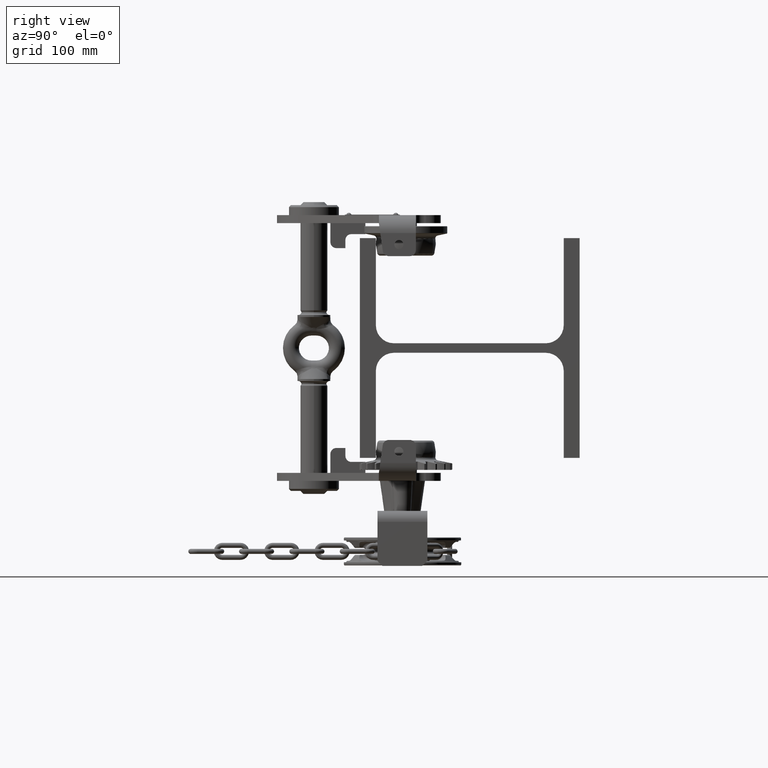
[diagram: clean part render]
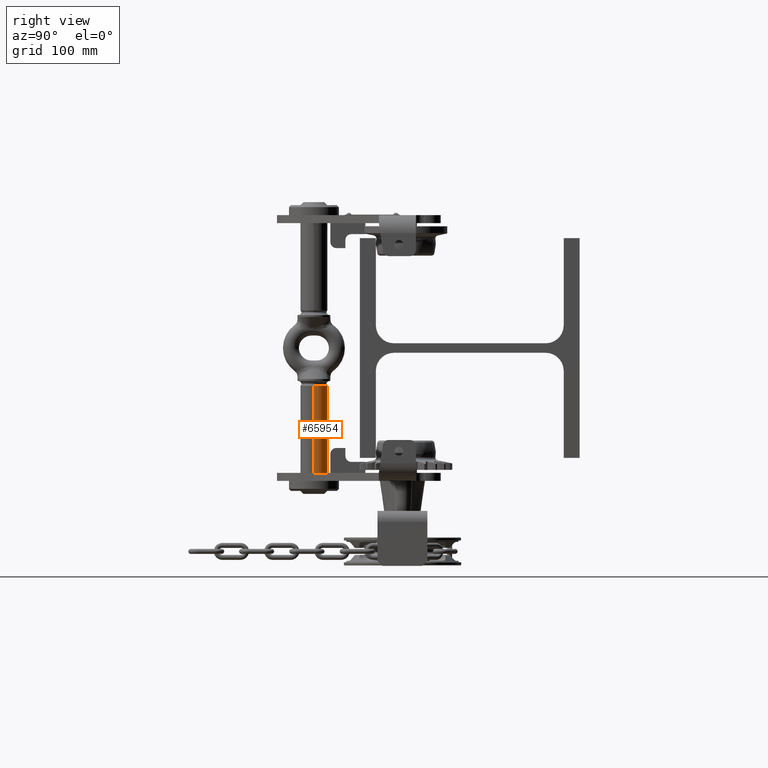
[diagram: same view with one face highlighted and labeled with its STEP entity id]
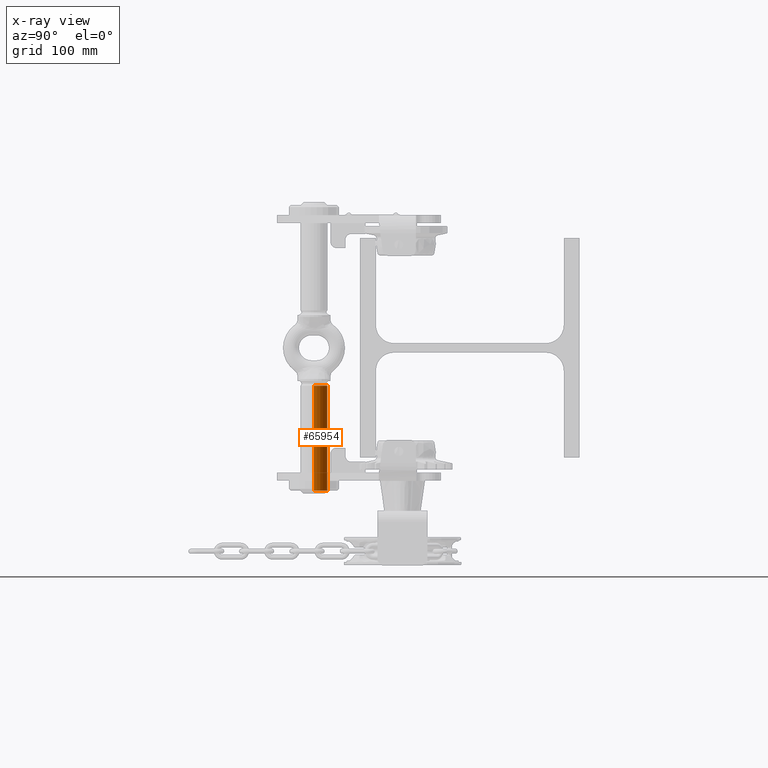
[diagram: x-ray of the same camera — body ghosted, the highlighted face saturated]
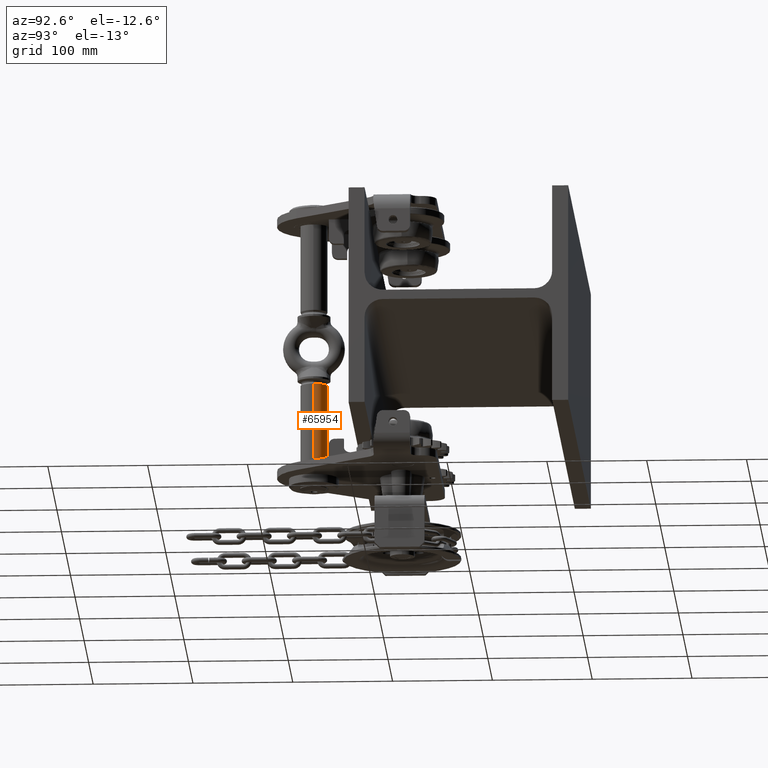
[diagram: same view with one face highlighted and labeled with its STEP entity id]
A machine part, right view. The second image highlights one B-rep face of the part: STEP entity #65954.
The next image is the same camera in x-ray: the body ghosted, the highlighted face saturated — about 0% of this face is hidden behind the body in this view.
A second angle (auxiliary view) of the same face is appended — the face is thin or edge-on in the first view.
In plain terms, the highlighted cylindrical surface (edge-blend (fillet) strip) has radius 13.5 mm, axis along (-0, -0, -1).
Its self-contained STEP definition (entity closure, byte-faithful):
#1625 = FACE_OUTER_BOUND ( 'NONE', #62891, .T. ) ;
#2466 = VERTEX_POINT ( 'NONE', #50190 ) ;
#6380 = AXIS2_PLACEMENT_3D ( 'NONE', #46461, #14658, #69481 ) ;
#7515 = AXIS2_PLACEMENT_3D ( 'NONE', #52473, #91489, #59603 ) ;
#11310 = DIRECTION ( 'NONE',  ( -6.932088575135509200E-017, -5.548357037863925300E-017, -1.000000000000000000 ) ) ;
#14262 = ORIENTED_EDGE ( 'NONE', *, *, #50264, .T. ) ;
#14658 = DIRECTION ( 'NONE',  ( 6.932088575135509200E-017, 5.548357037863925300E-017, 1.000000000000000000 ) ) ;
#17167 = DIRECTION ( 'NONE',  ( -6.932088575135509200E-017, -5.548357037863925300E-017, -1.000000000000000000 ) ) ;
#18652 = VECTOR ( 'NONE', #17167, 1000.000000000000000 ) ;
#19504 = CARTESIAN_POINT ( 'NONE',  ( 13.50000000000061800, -155.9999999999998600, -167.4491825357096100 ) ) ;
#21861 = EDGE_CURVE ( 'NONE', #100092, #30744, #42928, .T. ) ;
#22913 = CARTESIAN_POINT ( 'NONE',  ( -13.49999999999937300, -155.9999999999998600, -37.73205080756886100 ) ) ;
#23247 = CARTESIAN_POINT ( 'NONE',  ( -13.49999999999938200, -155.9999999999998600, -167.4491825357096100 ) ) ;
#30744 = VERTEX_POINT ( 'NONE', #22913 ) ;
#35196 = VERTEX_POINT ( 'NONE', #64530 ) ;
#37124 = DIRECTION ( 'NONE',  ( -1.000000000000000000, 0.0000000000000000000, 0.0000000000000000000 ) ) ;
#39369 = VECTOR ( 'NONE', #11310, 1000.000000000000000 ) ;
#39648 = ORIENTED_EDGE ( 'NONE', *, *, #81798, .F. ) ;
#41473 = CIRCLE ( 'NONE', #6380, 13.50000000000000000 ) ;
#42928 = CIRCLE ( 'NONE', #7515, 13.50000000000000000 ) ;
#46461 = CARTESIAN_POINT ( 'NONE',  ( 6.185692979137188800E-013, -155.9999999999998600, -143.0000000000000300 ) ) ;
#50190 = CARTESIAN_POINT ( 'NONE',  ( -13.49999999999938200, -155.9999999999998600, -143.0000000000000300 ) ) ;
#50264 = EDGE_CURVE ( 'NONE', #100092, #35196, #90379, .T. ) ;
#52473 = CARTESIAN_POINT ( 'NONE',  ( 6.258665653929669300E-013, -155.9999999999998600, -37.73205080756886100 ) ) ;
#59603 = DIRECTION ( 'NONE',  ( -1.000000000000000000, 0.0000000000000000000, 0.0000000000000000000 ) ) ;
#62891 = EDGE_LOOP ( 'NONE', ( #93154, #14262, #76276, #39648 ) ) ;
#64530 = CARTESIAN_POINT ( 'NONE',  ( 13.50000000000061800, -155.9999999999998600, -143.0000000000000300 ) ) ;
#65954 = ADVANCED_FACE ( 'NONE', ( #1625 ), #81593, .T. ) ;
#69481 = DIRECTION ( 'NONE',  ( -1.000000000000000000, 0.0000000000000000000, 0.0000000000000000000 ) ) ;
#74709 = AXIS2_PLACEMENT_3D ( 'NONE', #92438, #91413, #37124 ) ;
#76276 = ORIENTED_EDGE ( 'NONE', *, *, #82305, .T. ) ;
#81593 = CYLINDRICAL_SURFACE ( 'NONE', #74709, 13.50000000000000000 ) ;
#81798 = EDGE_CURVE ( 'NONE', #30744, #2466, #93872, .T. ) ;
#82305 = EDGE_CURVE ( 'NONE', #35196, #2466, #41473, .T. ) ;
#90379 = LINE ( 'NONE', #19504, #39369 ) ;
#91413 = DIRECTION ( 'NONE',  ( -6.932088575135509200E-017, -5.548357037863925300E-017, -1.000000000000000000 ) ) ;
#91489 = DIRECTION ( 'NONE',  ( 6.932088575135509200E-017, 5.548357037863925300E-017, 1.000000000000000000 ) ) ;
#92438 = CARTESIAN_POINT ( 'NONE',  ( 6.168744589244470000E-013, -155.9999999999998600, -167.4491825357096100 ) ) ;
#93154 = ORIENTED_EDGE ( 'NONE', *, *, #21861, .F. ) ;
#93872 = LINE ( 'NONE', #23247, #18652 ) ;
#98076 = CARTESIAN_POINT ( 'NONE',  ( 13.50000000000062500, -155.9999999999998600, -37.73205080756886100 ) ) ;
#100092 = VERTEX_POINT ( 'NONE', #98076 ) ;